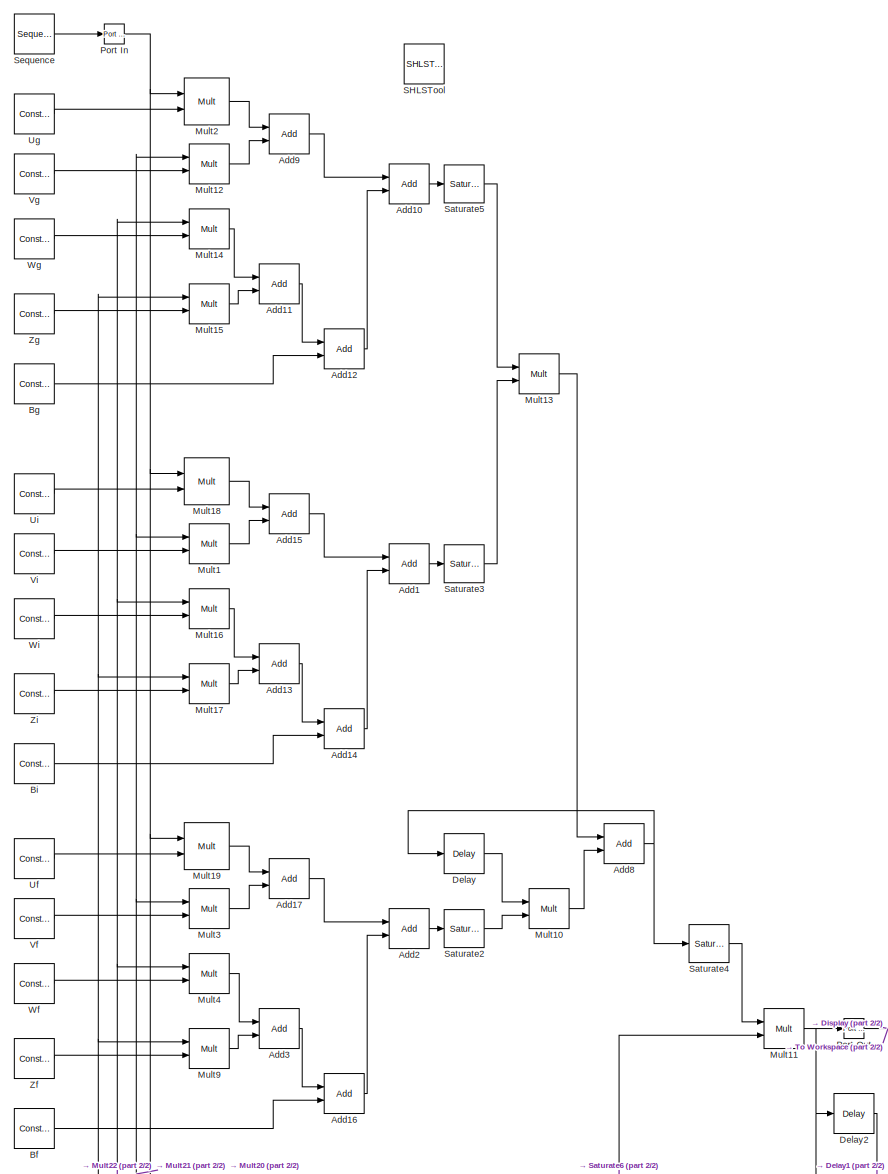
[diagram: root canvas - part 1/2, most of the canvas]
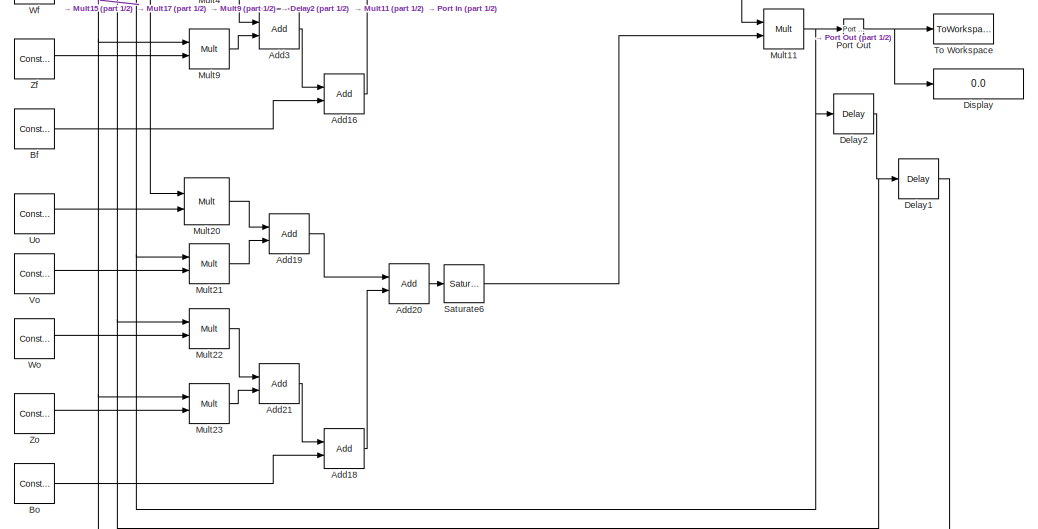
[diagram: root canvas - part 2/2, full width, bottom band]
MODEL slx_06789975546f
KIND model
CONFIG AbsTol = auto
CONFIG FixedStep = auto
CONFIG MaxStep = auto
CONFIG MinStep = auto
CONFIG RelTol = 1e-3
CONFIG SampleTimeConstraint = Unconstrained
CONFIG Solver = FixedStepDiscrete
CONFIG SolverMode = SingleTasking
CONFIG SolverName = FixedStepDiscrete
CONFIG StartTime = 0.0
CONFIG StopTime = 10.0
BLOCK [Reference] Add1  REF=shlslibv1/Math Functions/Add
  Ports = [2, 1]
  SourceBlock = shlslibv1/Math Functions/Add
  SourceType = Synphony Model Compiler Add
BLOCK [Reference] Add10  REF=shlslibv1/Math Functions/Add
  Ports = [2, 1]
  SourceBlock = shlslibv1/Math Functions/Add
  SourceType = Synphony Model Compiler Add
BLOCK [Reference] Add11  REF=shlslibv1/Math Functions/Add
  Ports = [2, 1]
  SourceBlock = shlslibv1/Math Functions/Add
  SourceType = Synphony Model Compiler Add
BLOCK [Reference] Add12  REF=shlslibv1/Math Functions/Add
  Ports = [2, 1]
  SourceBlock = shlslibv1/Math Functions/Add
  SourceType = Synphony Model Compiler Add
BLOCK [Reference] Add13  REF=shlslibv1/Math Functions/Add
  Ports = [2, 1]
  SourceBlock = shlslibv1/Math Functions/Add
  SourceType = Synphony Model Compiler Add
BLOCK [Reference] Add14  REF=shlslibv1/Math Functions/Add
  Ports = [2, 1]
  SourceBlock = shlslibv1/Math Functions/Add
  SourceType = Synphony Model Compiler Add
BLOCK [Reference] Add15  REF=shlslibv1/Math Functions/Add
  Ports = [2, 1]
  SourceBlock = shlslibv1/Math Functions/Add
  SourceType = Synphony Model Compiler Add
BLOCK [Reference] Add16  REF=shlslibv1/Math Functions/Add
  Ports = [2, 1]
  SourceBlock = shlslibv1/Math Functions/Add
  SourceType = Synphony Model Compiler Add
BLOCK [Reference] Add17  REF=shlslibv1/Math Functions/Add
  Ports = [2, 1]
  SourceBlock = shlslibv1/Math Functions/Add
  SourceType = Synphony Model Compiler Add
BLOCK [Reference] Add18  REF=shlslibv1/Math Functions/Add
  Ports = [2, 1]
  SourceBlock = shlslibv1/Math Functions/Add
  SourceType = Synphony Model Compiler Add
BLOCK [Reference] Add19  REF=shlslibv1/Math Functions/Add
  Ports = [2, 1]
  SourceBlock = shlslibv1/Math Functions/Add
  SourceType = Synphony Model Compiler Add
BLOCK [Reference] Add2  REF=shlslibv1/Math Functions/Add
  Ports = [2, 1]
  SourceBlock = shlslibv1/Math Functions/Add
  SourceType = Synphony Model Compiler Add
BLOCK [Reference] Add20  REF=shlslibv1/Math Functions/Add
  Ports = [2, 1]
  SourceBlock = shlslibv1/Math Functions/Add
  SourceType = Synphony Model Compiler Add
BLOCK [Reference] Add21  REF=shlslibv1/Math Functions/Add
  Ports = [2, 1]
  SourceBlock = shlslibv1/Math Functions/Add
  SourceType = Synphony Model Compiler Add
BLOCK [Reference] Add3  REF=shlslibv1/Math Functions/Add
  Ports = [2, 1]
  SourceBlock = shlslibv1/Math Functions/Add
  SourceType = Synphony Model Compiler Add
BLOCK [Reference] Add8  REF=shlslibv1/Math Functions/Add
  Ports = [2, 1]
  SourceBlock = shlslibv1/Math Functions/Add
  SourceType = Synphony Model Compiler Add
BLOCK [Reference] Add9  REF=shlslibv1/Math Functions/Add
  Ports = [2, 1]
  SourceBlock = shlslibv1/Math Functions/Add
  SourceType = Synphony Model Compiler Add
BLOCK [Reference] Bf  REF=shlslibv1/Sources/Constant
  Ports = [0, 1]
  SourceBlock = shlslibv1/Sources/Constant
  SourceType = Synphony Model Compiler Constant
BLOCK [Reference] Bg  REF=shlslibv1/Sources/Constant
  Ports = [0, 1]
  SourceBlock = shlslibv1/Sources/Constant
  SourceType = Synphony Model Compiler Constant
BLOCK [Reference] Bi  REF=shlslibv1/Sources/Constant
  Ports = [0, 1]
  SourceBlock = shlslibv1/Sources/Constant
  SourceType = Synphony Model Compiler Constant
BLOCK [Reference] Bo  REF=shlslibv1/Sources/Constant
  Ports = [0, 1]
  SourceBlock = shlslibv1/Sources/Constant
  SourceType = Synphony Model Compiler Constant
BLOCK [Reference] Delay  REF=shlslibv1/Memories/Delay
  Ports = [1, 1]
  SourceBlock = shlslibv1/Memories/Delay
  SourceType = Synphony Model Compiler Delay
BLOCK [Reference] Delay1  REF=shlslibv1/Memories/Delay
  Ports = [1, 1]
  SourceBlock = shlslibv1/Memories/Delay
  SourceType = Synphony Model Compiler Delay
BLOCK [Reference] Delay2  REF=shlslibv1/Memories/Delay
  Ports = [1, 1]
  SourceBlock = shlslibv1/Memories/Delay
  SourceType = Synphony Model Compiler Delay
BLOCK [Display] Display
  Decimation = 1
  Ports = [1]
BLOCK [Reference] Mult1  REF=shlslibv1/Math Functions/Mult
  Ports = [2, 1]
  SourceBlock = shlslibv1/Math Functions/Mult
  SourceType = Synphony Model Compiler Mult
BLOCK [Reference] Mult10  REF=shlslibv1/Math Functions/Mult
  Ports = [2, 1]
  SourceBlock = shlslibv1/Math Functions/Mult
  SourceType = Synphony Model Compiler Mult
BLOCK [Reference] Mult11  REF=shlslibv1/Math Functions/Mult
  Ports = [2, 1]
  SourceBlock = shlslibv1/Math Functions/Mult
  SourceType = Synphony Model Compiler Mult
BLOCK [Reference] Mult12  REF=shlslibv1/Math Functions/Mult
  Ports = [2, 1]
  SourceBlock = shlslibv1/Math Functions/Mult
  SourceType = Synphony Model Compiler Mult
BLOCK [Reference] Mult13  REF=shlslibv1/Math Functions/Mult
  Ports = [2, 1]
  SourceBlock = shlslibv1/Math Functions/Mult
  SourceType = Synphony Model Compiler Mult
BLOCK [Reference] Mult14  REF=shlslibv1/Math Functions/Mult
  Ports = [2, 1]
  SourceBlock = shlslibv1/Math Functions/Mult
  SourceType = Synphony Model Compiler Mult
BLOCK [Reference] Mult15  REF=shlslibv1/Math Functions/Mult
  Ports = [2, 1]
  SourceBlock = shlslibv1/Math Functions/Mult
  SourceType = Synphony Model Compiler Mult
BLOCK [Reference] Mult16  REF=shlslibv1/Math Functions/Mult
  Ports = [2, 1]
  SourceBlock = shlslibv1/Math Functions/Mult
  SourceType = Synphony Model Compiler Mult
BLOCK [Reference] Mult17  REF=shlslibv1/Math Functions/Mult
  Ports = [2, 1]
  SourceBlock = shlslibv1/Math Functions/Mult
  SourceType = Synphony Model Compiler Mult
BLOCK [Reference] Mult18  REF=shlslibv1/Math Functions/Mult
  Ports = [2, 1]
  SourceBlock = shlslibv1/Math Functions/Mult
  SourceType = Synphony Model Compiler Mult
BLOCK [Reference] Mult19  REF=shlslibv1/Math Functions/Mult
  Ports = [2, 1]
  SourceBlock = shlslibv1/Math Functions/Mult
  SourceType = Synphony Model Compiler Mult
BLOCK [Reference] Mult2  REF=shlslibv1/Math Functions/Mult
  Ports = [2, 1]
  SourceBlock = shlslibv1/Math Functions/Mult
  SourceType = Synphony Model Compiler Mult
BLOCK [Reference] Mult20  REF=shlslibv1/Math Functions/Mult
  Ports = [2, 1]
  SourceBlock = shlslibv1/Math Functions/Mult
  SourceType = Synphony Model Compiler Mult
BLOCK [Reference] Mult21  REF=shlslibv1/Math Functions/Mult
  Ports = [2, 1]
  SourceBlock = shlslibv1/Math Functions/Mult
  SourceType = Synphony Model Compiler Mult
BLOCK [Reference] Mult22  REF=shlslibv1/Math Functions/Mult
  Ports = [2, 1]
  SourceBlock = shlslibv1/Math Functions/Mult
  SourceType = Synphony Model Compiler Mult
BLOCK [Reference] Mult23  REF=shlslibv1/Math Functions/Mult
  Ports = [2, 1]
  SourceBlock = shlslibv1/Math Functions/Mult
  SourceType = Synphony Model Compiler Mult
BLOCK [Reference] Mult3  REF=shlslibv1/Math Functions/Mult
  Ports = [2, 1]
  SourceBlock = shlslibv1/Math Functions/Mult
  SourceType = Synphony Model Compiler Mult
BLOCK [Reference] Mult4  REF=shlslibv1/Math Functions/Mult
  Ports = [2, 1]
  SourceBlock = shlslibv1/Math Functions/Mult
  SourceType = Synphony Model Compiler Mult
BLOCK [Reference] Mult9  REF=shlslibv1/Math Functions/Mult
  Ports = [2, 1]
  SourceBlock = shlslibv1/Math Functions/Mult
  SourceType = Synphony Model Compiler Mult
BLOCK [Reference] Port In  REF=shlslibv1/Ports & Subsystems/Port In
  Ports = [1, 1]
  SourceBlock = shlslibv1/Ports & Subsystems/Port In
  SourceType = Synphony Model Compiler Port In
BLOCK [Reference] Port Out  REF=shlslibv1/Ports & Subsystems/Port Out
  Ports = [1, 1]
  SourceBlock = shlslibv1/Ports & Subsystems/Port Out
  SourceType = Synphony Model Compiler Port Out
BLOCK [Reference] SHLSTool  REF=shlslibv1/SHLSTool
  Ports = []
  SourceBlock = shlslibv1/SHLSTool
  SourceType = Synphony HLS Toolbox
BLOCK [Reference] Saturate2  REF=shlslibv1/Signal Operations/Saturate
  Ports = [1, 1]
  SourceBlock = shlslibv1/Signal Operations/Saturate
  SourceType = Synphony Model Compiler Saturate
BLOCK [Reference] Saturate3  REF=shlslibv1/Signal Operations/Saturate
  Ports = [1, 1]
  SourceBlock = shlslibv1/Signal Operations/Saturate
  SourceType = Synphony Model Compiler Saturate
BLOCK [Reference] Saturate4  REF=shlslibv1/Signal Operations/Saturate
  Ports = [1, 1]
  SourceBlock = shlslibv1/Signal Operations/Saturate
  SourceType = Synphony Model Compiler Saturate
BLOCK [Reference] Saturate5  REF=shlslibv1/Signal Operations/Saturate
  Ports = [1, 1]
  SourceBlock = shlslibv1/Signal Operations/Saturate
  SourceType = Synphony Model Compiler Saturate
BLOCK [Reference] Saturate6  REF=shlslibv1/Signal Operations/Saturate
  Ports = [1, 1]
  SourceBlock = shlslibv1/Signal Operations/Saturate
  SourceType = Synphony Model Compiler Saturate
BLOCK [Reference] Sequence  REF=shlslibv1/Sources/Sequence
  Ports = [0, 1]
  SourceBlock = shlslibv1/Sources/Sequence
  SourceType = Synphony Model Compiler Sequence
BLOCK [ToWorkspace] To Workspace
  FixptAsFi = on
  MaxDataPoints = inf
  Ports = [1]
  SampleTime = 1/320e6
  Save2DSignal = 3-D array (concatenate along third dimension)
  SaveFormat = Structure With Time
  VariableName = y
BLOCK [Reference] Uf  REF=shlslibv1/Sources/Constant
  Ports = [0, 1]
  SourceBlock = shlslibv1/Sources/Constant
  SourceType = Synphony Model Compiler Constant
BLOCK [Reference] Ug  REF=shlslibv1/Sources/Constant
  Ports = [0, 1]
  SourceBlock = shlslibv1/Sources/Constant
  SourceType = Synphony Model Compiler Constant
BLOCK [Reference] Ui  REF=shlslibv1/Sources/Constant
  Ports = [0, 1]
  SourceBlock = shlslibv1/Sources/Constant
  SourceType = Synphony Model Compiler Constant
BLOCK [Reference] Uo  REF=shlslibv1/Sources/Constant
  Ports = [0, 1]
  SourceBlock = shlslibv1/Sources/Constant
  SourceType = Synphony Model Compiler Constant
BLOCK [Reference] Vf  REF=shlslibv1/Sources/Constant
  Ports = [0, 1]
  SourceBlock = shlslibv1/Sources/Constant
  SourceType = Synphony Model Compiler Constant
BLOCK [Reference] Vg  REF=shlslibv1/Sources/Constant
  Ports = [0, 1]
  SourceBlock = shlslibv1/Sources/Constant
  SourceType = Synphony Model Compiler Constant
BLOCK [Reference] Vi  REF=shlslibv1/Sources/Constant
  Ports = [0, 1]
  SourceBlock = shlslibv1/Sources/Constant
  SourceType = Synphony Model Compiler Constant
BLOCK [Reference] Vo  REF=shlslibv1/Sources/Constant
  Ports = [0, 1]
  SourceBlock = shlslibv1/Sources/Constant
  SourceType = Synphony Model Compiler Constant
BLOCK [Reference] Wf  REF=shlslibv1/Sources/Constant
  Ports = [0, 1]
  SourceBlock = shlslibv1/Sources/Constant
  SourceType = Synphony Model Compiler Constant
BLOCK [Reference] Wg  REF=shlslibv1/Sources/Constant
  Ports = [0, 1]
  SourceBlock = shlslibv1/Sources/Constant
  SourceType = Synphony Model Compiler Constant
BLOCK [Reference] Wi  REF=shlslibv1/Sources/Constant
  Ports = [0, 1]
  SourceBlock = shlslibv1/Sources/Constant
  SourceType = Synphony Model Compiler Constant
BLOCK [Reference] Wo  REF=shlslibv1/Sources/Constant
  Ports = [0, 1]
  SourceBlock = shlslibv1/Sources/Constant
  SourceType = Synphony Model Compiler Constant
BLOCK [Reference] Zf  REF=shlslibv1/Sources/Constant
  Ports = [0, 1]
  SourceBlock = shlslibv1/Sources/Constant
  SourceType = Synphony Model Compiler Constant
BLOCK [Reference] Zg  REF=shlslibv1/Sources/Constant
  Ports = [0, 1]
  SourceBlock = shlslibv1/Sources/Constant
  SourceType = Synphony Model Compiler Constant
BLOCK [Reference] Zi  REF=shlslibv1/Sources/Constant
  Ports = [0, 1]
  SourceBlock = shlslibv1/Sources/Constant
  SourceType = Synphony Model Compiler Constant
BLOCK [Reference] Zo  REF=shlslibv1/Sources/Constant
  Ports = [0, 1]
  SourceBlock = shlslibv1/Sources/Constant
  SourceType = Synphony Model Compiler Constant
LINE Add10:1 -> Saturate5:1
LINE Add11:1 -> Add12:1
LINE Add12:1 -> Add10:2
LINE Add13:1 -> Add14:1
LINE Add14:1 -> Add1:2
LINE Add15:1 -> Add1:1
LINE Add16:1 -> Add2:2
LINE Add17:1 -> Add2:1
LINE Add18:1 -> Add20:2
LINE Add19:1 -> Add20:1
LINE Add1:1 -> Saturate3:1
LINE Add20:1 -> Saturate6:1
LINE Add21:1 -> Add18:1
LINE Add2:1 -> Saturate2:1
LINE Add3:1 -> Add16:1
NET Add8:1 -> Delay:1, Saturate4:1
LINE Add9:1 -> Add10:1
LINE Bf:1 -> Add16:2
LINE Bg:1 -> Add12:2
LINE Bi:1 -> Add14:2
LINE Bo:1 -> Add18:2
NET Delay1:1 -> Mult15:1, Mult17:1, Mult23:1, Mult9:1
NET Delay2:1 -> Delay1:1, Mult14:1, Mult16:1, Mult22:1, Mult4:1
LINE Delay:1 -> Mult10:1
LINE Mult10:1 -> Add8:2
NET Mult11:1 -> Delay2:1, Mult12:1, Mult1:1, Mult21:1, Mult3:1, Port Out:1
LINE Mult12:1 -> Add9:2
LINE Mult13:1 -> Add8:1
LINE Mult14:1 -> Add11:1
LINE Mult15:1 -> Add11:2
LINE Mult16:1 -> Add13:1
LINE Mult17:1 -> Add13:2
LINE Mult18:1 -> Add15:1
LINE Mult19:1 -> Add17:1
LINE Mult1:1 -> Add15:2
LINE Mult20:1 -> Add19:1
LINE Mult21:1 -> Add19:2
LINE Mult22:1 -> Add21:1
LINE Mult23:1 -> Add21:2
LINE Mult2:1 -> Add9:1
LINE Mult3:1 -> Add17:2
LINE Mult4:1 -> Add3:1
LINE Mult9:1 -> Add3:2
NET Port In:1 -> Mult18:1, Mult19:1, Mult20:1, Mult2:1
NET Port Out:1 -> Display:1, To Workspace:1
LINE Saturate2:1 -> Mult10:2
LINE Saturate3:1 -> Mult13:2
LINE Saturate4:1 -> Mult11:1
LINE Saturate5:1 -> Mult13:1
LINE Saturate6:1 -> Mult11:2
LINE Sequence:1 -> Port In:1
LINE Uf:1 -> Mult19:2
LINE Ug:1 -> Mult2:2
LINE Ui:1 -> Mult18:2
LINE Uo:1 -> Mult20:2
LINE Vf:1 -> Mult3:2
LINE Vg:1 -> Mult12:2
LINE Vi:1 -> Mult1:2
LINE Vo:1 -> Mult21:2
LINE Wf:1 -> Mult4:2
LINE Wg:1 -> Mult14:2
LINE Wi:1 -> Mult16:2
LINE Wo:1 -> Mult22:2
LINE Zf:1 -> Mult9:2
LINE Zg:1 -> Mult15:2
LINE Zi:1 -> Mult17:2
LINE Zo:1 -> Mult23:2
note: NET lines group one-source signal fan-out (src -> all destinations, sorted); 1:1 wires keep LINE
